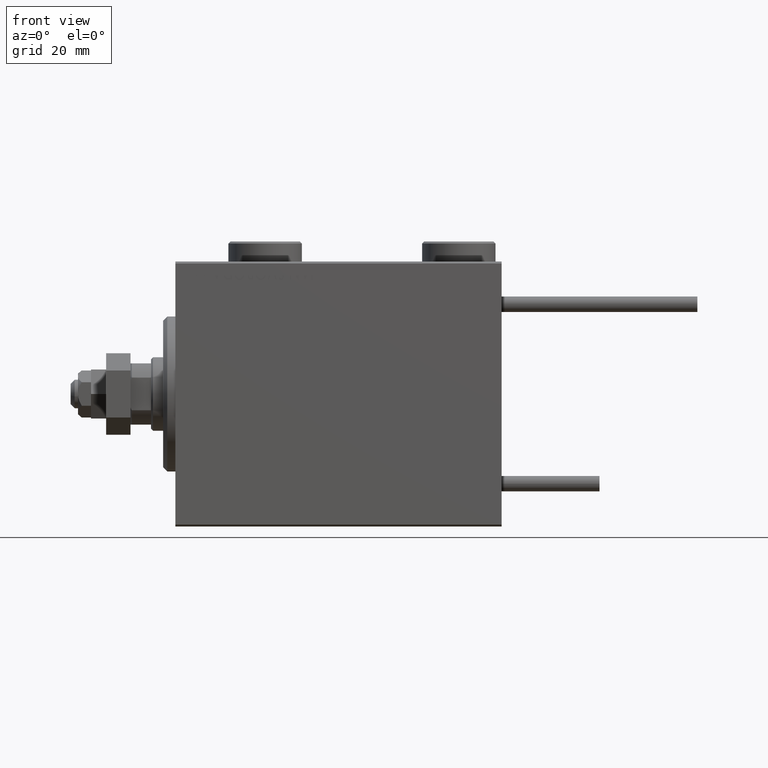
[diagram: clean part render]
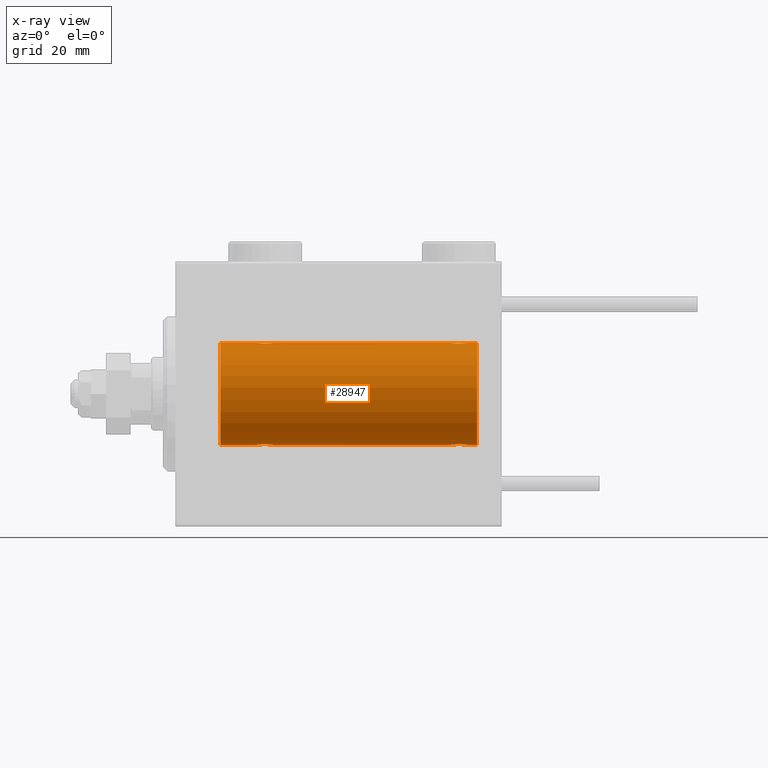
[diagram: x-ray — body ghosted, one internal face saturated and labeled with its STEP entity id]
A machine part, front view, then the same camera in x-ray: the body is ghosted and one INTERNAL B-rep face — a face not visible from any outside direction — is saturated and labeled: STEP entity #28947.
In plain terms, the highlighted cylindrical surface (partial cylindrical patch) has radius 12.5 mm, axis along (-1, -0, -0).
Its self-contained STEP definition (entity closure, byte-faithful):
#430 = CARTESIAN_POINT ( 'NONE',  ( 10.99999999999999645, 1.530808498934191521E-15, -12.50000000000000000 ) ) ;
#447 = CYLINDRICAL_SURFACE ( 'NONE', #21290, 12.50000000000000000 ) ;
#471 = CARTESIAN_POINT ( 'NONE',  ( 74.00000000000000000, 0.000000000000000000, 12.50000000000000000 ) ) ;
#570 = EDGE_CURVE ( 'NONE', #34065, #29341, #9362, .T. ) ;
#928 = CARTESIAN_POINT ( 'NONE',  ( 23.79785606468258052, -0.8858253204748003373, -12.46915613403960954 ) ) ;
#1180 = CARTESIAN_POINT ( 'NONE',  ( 71.50000000000004263, -0.2612140938986735050, -12.50000000000000355 ) ) ;
#1196 = CARTESIAN_POINT ( 'NONE',  ( 20.67883287148555382, -1.507135374967699670, -12.40915432986587064 ) ) ;
#1534 = CARTESIAN_POINT ( 'NONE',  ( 74.00000000000000000, 0.000000000000000000, 12.50000000000000000 ) ) ;
#1701 = CARTESIAN_POINT ( 'NONE',  ( 24.00000000000000711, -0.2612140938986747818, -12.50000000000000533 ) ) ;
#1872 = CARTESIAN_POINT ( 'NONE',  ( 68.17700056892269345, -1.505544071529930639, 12.40934942683854025 ) ) ;
#1986 = VECTOR ( 'NONE', #26724, 1000.000000000000000 ) ;
#2397 = CARTESIAN_POINT ( 'NONE',  ( 68.85356103036406239, -1.897190184049181161, 12.35529285772521213 ) ) ;
#3124 = CARTESIAN_POINT ( 'NONE',  ( 21.86659749548704212, -1.999916920503820306, 12.33897614545467647 ) ) ;
#3374 = CARTESIAN_POINT ( 'NONE',  ( 19.99999999999999645, -7.265724481447607133E-23, 12.50000000000000000 ) ) ;
#4489 = CARTESIAN_POINT ( 'NONE',  ( 71.50000000000001421, 1.530808426270318106E-15, -12.50000000000000000 ) ) ;
#4615 = CARTESIAN_POINT ( 'NONE',  ( 71.23563078019577688, -1.002396200863558073, -12.46022444231050663 ) ) ;
#4725 = VERTEX_POINT ( 'NONE', #39005 ) ;
#5161 = CARTESIAN_POINT ( 'NONE',  ( 20.78145880458060901, -1.591305132013878021, -12.39851226212236313 ) ) ;
#5416 = CARTESIAN_POINT ( 'NONE',  ( 67.90255225308976605, -1.231226695485375888, -12.44059298055988094 ) ) ;
#5648 = VERTEX_POINT ( 'NONE', #29958 ) ;
#5688 = CARTESIAN_POINT ( 'NONE',  ( 21.86910032676576421, -2.000082296475566679, -12.33894933996983490 ) ) ;
#5825 = ORIENTED_EDGE ( 'NONE', *, *, #44627, .F. ) ;
#6380 = CARTESIAN_POINT ( 'NONE',  ( 70.01693726697627085, -1.936441098420705220, 12.34912369794528786 ) ) ;
#6570 = CARTESIAN_POINT ( 'NONE',  ( 23.74662136620892383, -1.008535157355842538, 12.46157701909767646 ) ) ;
#6680 = DIRECTION ( 'NONE',  ( -1.000000000000000000, 0.000000000000000000, 0.000000000000000000 ) ) ;
#6872 = VECTOR ( 'NONE', #36107, 1000.000000000000000 ) ;
#7108 = CARTESIAN_POINT ( 'NONE',  ( 21.73608626897565799, -1.986793270638199438, 12.34112317291865502 ) ) ;
#7532 = EDGE_CURVE ( 'NONE', #24075, #30968, #41908, .T. ) ;
#7603 = CARTESIAN_POINT ( 'NONE',  ( 23.59744774691023039, -1.231226695485369893, 12.44059298055988272 ) ) ;
#7785 = ORIENTED_EDGE ( 'NONE', *, *, #570, .T. ) ;
#8597 = CARTESIAN_POINT ( 'NONE',  ( 67.75337863379105841, -1.008535157355851197, -12.46157701909767823 ) ) ;
#9120 = CARTESIAN_POINT ( 'NONE',  ( 71.08981090228292032, -1.220538259806345893, -12.44075068685996932 ) ) ;
#9362 = B_SPLINE_CURVE_WITH_KNOTS ( 'NONE', 3,
 ( #41860, #1701, #37344, #928, #16861, #29885, #49293, #37615, #17919, #46362, #45566, #33871, #45833, #33079, #13672, #5688, #20835, #50365, #34137, #41591, #42121, #5161, #1196, #42383, #13401, #12862, #17403, #46105 ),
 .UNSPECIFIED., .F., .F.,
 ( 4, 2, 2, 2, 2, 2, 2, 2, 2, 2, 2, 2, 2, 4 ),
 ( 0.006262980370572176700, 0.007045658964677373355, 0.007436998261729973851, 0.007828337558782575215, 0.008219676855835175711, 0.008611016152887776207, 0.009002355449940376703, 0.009393694746992977199, 0.009785034044045577695, 0.01017637334109817646, 0.01056771263815077869, 0.01095905193520337745, 0.01174173052930858711, 0.01252440912341379504 ),
 .UNSPECIFIED. ) ;
#9463 = FACE_OUTER_BOUND ( 'NONE', #22713, .T. ) ;
#9523 = CARTESIAN_POINT ( 'NONE',  ( 24.00000000000000000, 1.530808426277417854E-15, -12.50000000000000000 ) ) ;
#9717 = B_SPLINE_CURVE_WITH_KNOTS ( 'NONE', 3,
 ( #34036, #38030, #42017, #10103, #22067, #38301, #18352, #1872, #41757, #34561, #14094, #2397, #26329, #50788, #14356, #26602, #42817, #6380, #22603, #38834, #18612, #47563, #22865, #43073, #52338, #51324, #23131, #35349 ),
 .UNSPECIFIED., .F., .F.,
 ( 4, 2, 2, 2, 2, 2, 2, 2, 2, 2, 2, 2, 2, 4 ),
 ( 0.006262980370572151546, 0.007045658964677331722, 0.007436998261729929616, 0.007828337558782528377, 0.008219676855835125404, 0.008611016152887724165, 0.009002355449940321191, 0.009393694746992919953, 0.009785034044045518714, 0.01017637334109811748, 0.01056771263815071624, 0.01095905193520331326, 0.01174173052930854028, 0.01252440912341376555 ),
 .UNSPECIFIED. ) ;
#9915 = CARTESIAN_POINT ( 'NONE',  ( 74.00000000000000000, 0.000000000000000000, 12.50000000000000000 ) ) ;
#9964 = VERTEX_POINT ( 'NONE', #4489 ) ;
#10103 = CARTESIAN_POINT ( 'NONE',  ( 67.70214393531738040, -0.8858253204748003373, 12.46915613403960421 ) ) ;
#10826 = CARTESIAN_POINT ( 'NONE',  ( 20.05255659427670167, -0.5247436444070346928, 12.49130933415156619 ) ) ;
#11352 = CARTESIAN_POINT ( 'NONE',  ( 23.21854119541938033, -1.591305132013879131, 12.39851226212235957 ) ) ;
#11603 = CARTESIAN_POINT ( 'NONE',  ( 22.26093497285607370, -1.987194304939079448, 12.34105826212746138 ) ) ;
#11838 = AXIS2_PLACEMENT_3D ( 'NONE', #29550, #6680, #22382 ) ;
#11905 = VECTOR ( 'NONE', #50607, 1000.000000000000000 ) ;
#12094 = DIRECTION ( 'NONE',  ( -1.000000000000000000, -0.000000000000000000, -0.000000000000000000 ) ) ;
#12480 = DIRECTION ( 'NONE',  ( -1.000000000000000000, 0.000000000000000000, 0.000000000000000000 ) ) ;
#12737 = DIRECTION ( 'NONE',  ( 0.000000000000000000, 0.000000000000000000, 1.000000000000000000 ) ) ;
#12862 = CARTESIAN_POINT ( 'NONE',  ( 20.05334320101619738, -0.5275951738695662252, -12.49118442338578561 ) ) ;
#13401 = CARTESIAN_POINT ( 'NONE',  ( 20.25337863379106551, -1.008535157355840761, -12.46157701909767646 ) ) ;
#13660 = DIRECTION ( 'NONE',  ( -1.000000000000000000, -0.000000000000000000, -0.000000000000000000 ) ) ;
#13672 = CARTESIAN_POINT ( 'NONE',  ( 22.13340250451295077, -1.999916920503817197, -12.33897614545467469 ) ) ;
#14094 = CARTESIAN_POINT ( 'NONE',  ( 68.61125274202963453, -1.796480516834681573, 12.37033750336835958 ) ) ;
#14356 = CARTESIAN_POINT ( 'NONE',  ( 69.36659749548704212, -1.999916920503812534, 12.33897614545467647 ) ) ;
#14545 = ORIENTED_EDGE ( 'NONE', *, *, #48212, .T. ) ;
#15080 = CARTESIAN_POINT ( 'NONE',  ( 20.99654425923307954, -1.734959850168413587, 12.37922718965051061 ) ) ;
#15648 = LINE ( 'NONE', #48069, #6872 ) ;
#15852 = CARTESIAN_POINT ( 'NONE',  ( 20.49277848532005919, -1.321088093821079834, 12.43033959299025071 ) ) ;
#16845 = CARTESIAN_POINT ( 'NONE',  ( 70.50345574076690980, -1.734959850168409146, -12.37922718965050528 ) ) ;
#16861 = CARTESIAN_POINT ( 'NONE',  ( 23.73563078019576977, -1.002396200863559184, -12.46022444231050663 ) ) ;
#17403 = CARTESIAN_POINT ( 'NONE',  ( 20.00000000000000000, -0.2646816682749822958, -12.50000000000000000 ) ) ;
#17919 = CARTESIAN_POINT ( 'NONE',  ( 23.22027149897420628, -1.589951752150275732, -12.39868561261689273 ) ) ;
#18352 = CARTESIAN_POINT ( 'NONE',  ( 67.99277848532008761, -1.321088093821075393, 12.43033959299025426 ) ) ;
#18612 = CARTESIAN_POINT ( 'NONE',  ( 70.50099792098508544, -1.736403706023266658, 12.37902502246767789 ) ) ;
#18812 = CARTESIAN_POINT ( 'NONE',  ( 20.20214393531741237, -0.8858253204748024467, 12.46915613403961309 ) ) ;
#19323 = CARTESIAN_POINT ( 'NONE',  ( 22.51693726697628151, -1.936441098420708773, 12.34912369794528608 ) ) ;
#19576 = CARTESIAN_POINT ( 'NONE',  ( 23.32116712851443907, -1.507135374967700558, 12.40915432986587064 ) ) ;
#20182 = ORIENTED_EDGE ( 'NONE', *, *, #24701, .F. ) ;
#20817 = CARTESIAN_POINT ( 'NONE',  ( 67.50000000000000000, -8.176262823880599614E-15, -12.50000000000000000 ) ) ;
#20835 = CARTESIAN_POINT ( 'NONE',  ( 21.73906502714393341, -1.987194304939077671, -12.34105826212746138 ) ) ;
#21084 = CARTESIAN_POINT ( 'NONE',  ( 70.01961472357872651, -1.935716533151645269, -12.34923763528284901 ) ) ;
#21290 = AXIS2_PLACEMENT_3D ( 'NONE', #24900, #33673, #40849 ) ;
#21736 = LINE ( 'NONE', #1534, #1986 ) ;
#21888 = CARTESIAN_POINT ( 'NONE',  ( 70.72027149897421339, -1.589951752150273512, -12.39868561261689095 ) ) ;
#22067 = CARTESIAN_POINT ( 'NONE',  ( 67.76436921980425154, -1.002396200863564291, 12.46022444231050663 ) ) ;
#22382 = DIRECTION ( 'NONE',  ( 0.000000000000000000, 0.000000000000000000, 1.000000000000000000 ) ) ;
#22603 = CARTESIAN_POINT ( 'NONE',  ( 70.14425278797729391, -1.897913903092038890, 12.35518060345724933 ) ) ;
#22713 = EDGE_LOOP ( 'NONE', ( #24875, #46985, #14545, #52407, #7785, #40557, #45222, #42557, #31855, #5825, #33225, #20182 ) ) ;
#22798 = CARTESIAN_POINT ( 'NONE',  ( 24.00000000000000000, -4.527848004210791175E-16, 12.50000000000000000 ) ) ;
#22865 = CARTESIAN_POINT ( 'NONE',  ( 70.82116712851446039, -1.507135374967687458, 12.40915432986586886 ) ) ;
#23131 = CARTESIAN_POINT ( 'NONE',  ( 71.50000000000002842, -0.2646816682749792982, 12.50000000000000178 ) ) ;
#23225 = EDGE_CURVE ( 'NONE', #47476, #4725, #25442, .T. ) ;
#24075 = VERTEX_POINT ( 'NONE', #430 ) ;
#24649 = B_SPLINE_CURVE_WITH_KNOTS ( 'NONE', 3,
 ( #25084, #1180, #28804, #25893, #4615, #9120, #24825, #42106, #21888, #16845, #37858, #25351, #21084, #38117, #49819, #45816, #33856, #45285, #41574, #41845, #45012, #49553, #33598, #5416, #8597, #37600, #50080, #20817 ),
 .UNSPECIFIED., .F., .F.,
 ( 4, 2, 2, 2, 2, 2, 2, 2, 2, 2, 2, 2, 2, 4 ),
 ( 0.006262980370572168026, 0.007045658964677356875, 0.007436998261729959106, 0.007828337558782561337, 0.008219676855835163568, 0.008611016152887765798, 0.009002355449940368029, 0.009393694746992970260, 0.009785034044045572491, 0.01017637334109817472, 0.01056771263815077869, 0.01095905193520338092, 0.01174173052930858538, 0.01252440912341379158 ),
 .UNSPECIFIED. ) ;
#24701 = EDGE_CURVE ( 'NONE', #4725, #36428, #46338, .T. ) ;
#24825 = CARTESIAN_POINT ( 'NONE',  ( 71.00722151467995502, -1.321088093821075393, -12.43033959299025426 ) ) ;
#24875 = ORIENTED_EDGE ( 'NONE', *, *, #23225, .F. ) ;
#24900 = CARTESIAN_POINT ( 'NONE',  ( 74.00000000000000000, 0.000000000000000000, 0.000000000000000000 ) ) ;
#25084 = CARTESIAN_POINT ( 'NONE',  ( 71.50000000000001421, 1.530808426270318106E-15, -12.50000000000000000 ) ) ;
#25351 = CARTESIAN_POINT ( 'NONE',  ( 70.14643896963590919, -1.897190184049181827, -12.35529285772521568 ) ) ;
#25442 = CIRCLE ( 'NONE', #11838, 12.50000000000000000 ) ;
#25823 = CARTESIAN_POINT ( 'NONE',  ( 67.50000000000000000, -8.176262823880599614E-15, -12.50000000000000000 ) ) ;
#25893 = CARTESIAN_POINT ( 'NONE',  ( 71.29785606468259118, -0.8858253204747997822, -12.46915613403960954 ) ) ;
#26129 = CARTESIAN_POINT ( 'NONE',  ( 10.99999999999999645, 0.000000000000000000, 12.50000000000000000 ) ) ;
#26329 = CARTESIAN_POINT ( 'NONE',  ( 68.98038527642127349, -1.935716533151639718, 12.34923763528284546 ) ) ;
#26602 = CARTESIAN_POINT ( 'NONE',  ( 69.63089967323422513, -2.000082296475560906, 12.33894933996983490 ) ) ;
#26724 = DIRECTION ( 'NONE',  ( -1.000000000000000000, -0.000000000000000000, -0.000000000000000000 ) ) ;
#27049 = CARTESIAN_POINT ( 'NONE',  ( 21.35356103036408371, -1.897190184049189599, 12.35529285772521391 ) ) ;
#27136 = EDGE_CURVE ( 'NONE', #5648, #42872, #50715, .T. ) ;
#27224 = CARTESIAN_POINT ( 'NONE',  ( 71.50000000000001421, 3.163483401492493339E-15, 12.50000000000000000 ) ) ;
#27317 = CARTESIAN_POINT ( 'NONE',  ( 20.41018909771710454, -1.220538259806349446, 12.44075068685996932 ) ) ;
#27577 = CARTESIAN_POINT ( 'NONE',  ( 23.94665679898380617, -0.5275951738695671134, 12.49118442338578561 ) ) ;
#27825 = CARTESIAN_POINT ( 'NONE',  ( 22.88616153879432602, -1.797736511708064144, 12.37015393445320299 ) ) ;
#28079 = CARTESIAN_POINT ( 'NONE',  ( 22.64425278797729391, -1.897913903092048438, 12.35518060345725111 ) ) ;
#28804 = CARTESIAN_POINT ( 'NONE',  ( 71.44744340572330543, -0.5247436444070332495, -12.49130933415156264 ) ) ;
#28947 = ADVANCED_FACE ( 'NONE', ( #9463 ), #447, .F. ) ;
#29200 = EDGE_CURVE ( 'NONE', #47739, #34065, #37863, .T. ) ;
#29341 = VERTEX_POINT ( 'NONE', #36825 ) ;
#29499 = CARTESIAN_POINT ( 'NONE',  ( 10.99999999999999645, 0.000000000000000000, 0.000000000000000000 ) ) ;
#29550 = CARTESIAN_POINT ( 'NONE',  ( 74.00000000000000000, 0.000000000000000000, 0.000000000000000000 ) ) ;
#29885 = CARTESIAN_POINT ( 'NONE',  ( 23.58981090228289546, -1.220538259806347225, -12.44075068685997287 ) ) ;
#29958 = CARTESIAN_POINT ( 'NONE',  ( 19.99999999999999645, -7.265724481447607133E-23, 12.50000000000000000 ) ) ;
#30348 = EDGE_CURVE ( 'NONE', #29341, #24075, #44530, .T. ) ;
#30968 = VERTEX_POINT ( 'NONE', #26129 ) ;
#31032 = CARTESIAN_POINT ( 'NONE',  ( 22.13089967323422869, -2.000082296475568011, 12.33894933996983134 ) ) ;
#31089 = CARTESIAN_POINT ( 'NONE',  ( 74.00000000000000000, 1.530808498934191521E-15, -12.50000000000000000 ) ) ;
#31365 = EDGE_CURVE ( 'NONE', #45442, #36428, #9717, .T. ) ;
#31547 = VECTOR ( 'NONE', #12094, 1000.000000000000000 ) ;
#31855 = ORIENTED_EDGE ( 'NONE', *, *, #27136, .T. ) ;
#33079 = CARTESIAN_POINT ( 'NONE',  ( 22.26391373102435622, -1.986793270638196551, -12.34112317291864791 ) ) ;
#33225 = ORIENTED_EDGE ( 'NONE', *, *, #31365, .T. ) ;
#33598 = CARTESIAN_POINT ( 'NONE',  ( 68.17883287148555382, -1.507135374967704999, -12.40915432986586531 ) ) ;
#33673 = DIRECTION ( 'NONE',  ( -1.000000000000000000, -0.000000000000000000, -0.000000000000000000 ) ) ;
#33856 = CARTESIAN_POINT ( 'NONE',  ( 69.23906502714393696, -1.987194304939079004, -12.34105826212746138 ) ) ;
#33871 = CARTESIAN_POINT ( 'NONE',  ( 22.64643896963591985, -1.897190184049187378, -12.35529285772521924 ) ) ;
#34036 = CARTESIAN_POINT ( 'NONE',  ( 67.50000000000000000, -7.266434456262306043E-23, 12.50000000000000000 ) ) ;
#34065 = VERTEX_POINT ( 'NONE', #9523 ) ;
#34137 = CARTESIAN_POINT ( 'NONE',  ( 21.35574721202270254, -1.897913903092047327, -12.35518060345725289 ) ) ;
#34561 = CARTESIAN_POINT ( 'NONE',  ( 68.49654425923313283, -1.734959850168412254, 12.37922718965051061 ) ) ;
#35349 = CARTESIAN_POINT ( 'NONE',  ( 71.50000000000001421, 3.163483401492493339E-15, 12.50000000000000000 ) ) ;
#36107 = DIRECTION ( 'NONE',  ( -1.000000000000000000, -0.000000000000000000, -0.000000000000000000 ) ) ;
#36428 = VERTEX_POINT ( 'NONE', #27224 ) ;
#36618 = DIRECTION ( 'NONE',  ( -1.000000000000000000, -0.000000000000000000, -0.000000000000000000 ) ) ;
#36825 = CARTESIAN_POINT ( 'NONE',  ( 19.99999999999999645, -3.213890523917628161E-15, -12.50000000000000000 ) ) ;
#37344 = CARTESIAN_POINT ( 'NONE',  ( 23.94744340572329833, -0.5247436444070328054, -12.49130933415156619 ) ) ;
#37600 = CARTESIAN_POINT ( 'NONE',  ( 67.55334320101620449, -0.5275951738695788817, -12.49118442338578383 ) ) ;
#37615 = CARTESIAN_POINT ( 'NONE',  ( 23.32299943107732432, -1.505544071529935080, -12.40934942683853848 ) ) ;
#37858 = CARTESIAN_POINT ( 'NONE',  ( 70.38874725797043652, -1.796480516834679797, -12.37033750336835425 ) ) ;
#37863 = LINE ( 'NONE', #42110, #46802 ) ;
#38030 = CARTESIAN_POINT ( 'NONE',  ( 67.49999999999998579, -0.2612140938986747818, 12.50000000000000000 ) ) ;
#38117 = CARTESIAN_POINT ( 'NONE',  ( 69.76391373102434557, -1.986793270638198994, -12.34112317291865146 ) ) ;
#38301 = CARTESIAN_POINT ( 'NONE',  ( 67.91018909771712231, -1.220538259806350778, 12.44075068685996754 ) ) ;
#38834 = CARTESIAN_POINT ( 'NONE',  ( 70.38616153879435444, -1.797736511708053264, 12.37015393445321010 ) ) ;
#38943 = CARTESIAN_POINT ( 'NONE',  ( 24.00000000000000000, -4.527848004210791175E-16, 12.50000000000000000 ) ) ;
#39005 = CARTESIAN_POINT ( 'NONE',  ( 74.00000000000000000, 0.000000000000000000, 12.50000000000000000 ) ) ;
#40557 = ORIENTED_EDGE ( 'NONE', *, *, #30348, .T. ) ;
#40849 = DIRECTION ( 'NONE',  ( 0.000000000000000000, 0.000000000000000000, 1.000000000000000000 ) ) ;
#41574 = CARTESIAN_POINT ( 'NONE',  ( 68.85574721202270609, -1.897913903092048660, -12.35518060345724933 ) ) ;
#41591 = CARTESIAN_POINT ( 'NONE',  ( 21.11383846120566332, -1.797736511708062368, -12.37015393445320122 ) ) ;
#41757 = CARTESIAN_POINT ( 'NONE',  ( 68.27972850102582925, -1.589951752150278397, 12.39868561261688740 ) ) ;
#41845 = CARTESIAN_POINT ( 'NONE',  ( 68.61383846120567398, -1.797736511708065033, -12.37015393445320832 ) ) ;
#41860 = CARTESIAN_POINT ( 'NONE',  ( 24.00000000000000000, 1.530808426277417854E-15, -12.50000000000000000 ) ) ;
#41908 = CIRCLE ( 'NONE', #42749, 12.50000000000000000 ) ;
#42017 = CARTESIAN_POINT ( 'NONE',  ( 67.55255659427669457, -0.5247436444070334716, 12.49130933415156441 ) ) ;
#42106 = CARTESIAN_POINT ( 'NONE',  ( 70.82299943107736340, -1.505544071529932193, -12.40934942683853848 ) ) ;
#42110 = CARTESIAN_POINT ( 'NONE',  ( 74.00000000000000000, 1.530808498934191521E-15, -12.50000000000000000 ) ) ;
#42121 = CARTESIAN_POINT ( 'NONE',  ( 20.99900207901491811, -1.736403706023270654, -12.37902502246767966 ) ) ;
#42383 = CARTESIAN_POINT ( 'NONE',  ( 20.40255225308977671, -1.231226695485369893, -12.44059298055988627 ) ) ;
#42557 = ORIENTED_EDGE ( 'NONE', *, *, #51128, .F. ) ;
#42749 = AXIS2_PLACEMENT_3D ( 'NONE', #29499, #12480, #12737 ) ;
#42817 = CARTESIAN_POINT ( 'NONE',  ( 69.76093497285606304, -1.987194304939074341, 12.34105826212746138 ) ) ;
#42872 = VERTEX_POINT ( 'NONE', #38943 ) ;
#43073 = CARTESIAN_POINT ( 'NONE',  ( 71.09744774691024816, -1.231226695485355904, 12.44059298055988450 ) ) ;
#43527 = CARTESIAN_POINT ( 'NONE',  ( 21.11125274202960256, -1.796480516834690233, 12.37033750336835958 ) ) ;
#43784 = CARTESIAN_POINT ( 'NONE',  ( 24.00000000000000000, -0.2646816682749787430, 12.50000000000000178 ) ) ;
#44530 = LINE ( 'NONE', #31089, #31547 ) ;
#44627 = EDGE_CURVE ( 'NONE', #45442, #42872, #48580, .T. ) ;
#45012 = CARTESIAN_POINT ( 'NONE',  ( 68.49900207901491456, -1.736403706023271099, -12.37902502246767611 ) ) ;
#45222 = ORIENTED_EDGE ( 'NONE', *, *, #7532, .T. ) ;
#45285 = CARTESIAN_POINT ( 'NONE',  ( 68.98306273302372915, -1.936441098420709883, -12.34912369794528786 ) ) ;
#45307 = EDGE_CURVE ( 'NONE', #47476, #9964, #15648, .T. ) ;
#45442 = VERTEX_POINT ( 'NONE', #49379 ) ;
#45566 = CARTESIAN_POINT ( 'NONE',  ( 22.88874725797039389, -1.796480516834687347, -12.37033750336835247 ) ) ;
#45816 = CARTESIAN_POINT ( 'NONE',  ( 69.36910032676581750, -2.000082296475568011, -12.33894933996983667 ) ) ;
#45833 = CARTESIAN_POINT ( 'NONE',  ( 22.51961472357873717, -1.935716533151642826, -12.34923763528285257 ) ) ;
#46105 = CARTESIAN_POINT ( 'NONE',  ( 19.99999999999999645, -3.213890523917628161E-15, -12.50000000000000000 ) ) ;
#46338 = LINE ( 'NONE', #9915, #11905 ) ;
#46362 = CARTESIAN_POINT ( 'NONE',  ( 23.00345574076691335, -1.734959850168410256, -12.37922718965050528 ) ) ;
#46597 = CARTESIAN_POINT ( 'NONE',  ( 74.00000000000000000, 1.530808498934191521E-15, -12.50000000000000000 ) ) ;
#46802 = VECTOR ( 'NONE', #13660, 1000.000000000000000 ) ;
#46985 = ORIENTED_EDGE ( 'NONE', *, *, #45307, .T. ) ;
#47248 = CARTESIAN_POINT ( 'NONE',  ( 23.00099792098508189, -1.736403706023272431, 12.37902502246767966 ) ) ;
#47476 = VERTEX_POINT ( 'NONE', #46597 ) ;
#47563 = CARTESIAN_POINT ( 'NONE',  ( 70.71854119541936257, -1.591305132013873358, 12.39851226212235957 ) ) ;
#47739 = VERTEX_POINT ( 'NONE', #25823 ) ;
#47762 = CARTESIAN_POINT ( 'NONE',  ( 20.67700056892266502, -1.505544071529935968, 12.40934942683853670 ) ) ;
#48022 = CARTESIAN_POINT ( 'NONE',  ( 20.77972850102578661, -1.589951752150277287, 12.39868561261688917 ) ) ;
#48069 = CARTESIAN_POINT ( 'NONE',  ( 74.00000000000000000, 1.530808498934191521E-15, -12.50000000000000000 ) ) ;
#48212 = EDGE_CURVE ( 'NONE', #9964, #47739, #24649, .T. ) ;
#48268 = CARTESIAN_POINT ( 'NONE',  ( 19.99999999999999289, -0.2612140938986765581, 12.50000000000000000 ) ) ;
#48580 = LINE ( 'NONE', #471, #50989 ) ;
#49293 = CARTESIAN_POINT ( 'NONE',  ( 23.50722151467992660, -1.321088093821078502, -12.43033959299025248 ) ) ;
#49379 = CARTESIAN_POINT ( 'NONE',  ( 67.50000000000000000, -7.266434456262306043E-23, 12.50000000000000000 ) ) ;
#49553 = CARTESIAN_POINT ( 'NONE',  ( 68.28145880458060901, -1.591305132013878909, -12.39851226212235957 ) ) ;
#49819 = CARTESIAN_POINT ( 'NONE',  ( 69.63340250451298630, -1.999916920503816531, -12.33897614545467647 ) ) ;
#50080 = CARTESIAN_POINT ( 'NONE',  ( 67.49999999999997158, -0.2646816682749892902, -12.49999999999999289 ) ) ;
#50365 = CARTESIAN_POINT ( 'NONE',  ( 21.48306273302371494, -1.936441098420706997, -12.34912369794528431 ) ) ;
#50607 = DIRECTION ( 'NONE',  ( -1.000000000000000000, -0.000000000000000000, -0.000000000000000000 ) ) ;
#50715 = B_SPLINE_CURVE_WITH_KNOTS ( 'NONE', 3,
 ( #3374, #48268, #10826, #18812, #51520, #27317, #15852, #47762, #48022, #15080, #43527, #27049, #51265, #7108, #3124, #31032, #11603, #19323, #28079, #27825, #47248, #11352, #19576, #7603, #6570, #27577, #43784, #22798 ),
 .UNSPECIFIED., .F., .F.,
 ( 4, 2, 2, 2, 2, 2, 2, 2, 2, 2, 2, 2, 2, 4 ),
 ( 0.006262980370572172363, 0.007045658964677369886, 0.007436998261729971249, 0.007828337558782571745, 0.008219676855835172241, 0.008611016152887774472, 0.009002355449940373233, 0.009393694746992975464, 0.009785034044045575960, 0.01017637334109817646, 0.01056771263815077869, 0.01095905193520337918, 0.01174173052930858538, 0.01252440912341379504 ),
 .UNSPECIFIED. ) ;
#50788 = CARTESIAN_POINT ( 'NONE',  ( 69.23608626897566864, -1.986793270638193443, 12.34112317291865146 ) ) ;
#50989 = VECTOR ( 'NONE', #36618, 1000.000000000000000 ) ;
#51128 = EDGE_CURVE ( 'NONE', #5648, #30968, #21736, .T. ) ;
#51265 = CARTESIAN_POINT ( 'NONE',  ( 21.48038527642126283, -1.935716533151644825, 12.34923763528284724 ) ) ;
#51324 = CARTESIAN_POINT ( 'NONE',  ( 71.44665679898382393, -0.5275951738695600080, 12.49118442338578561 ) ) ;
#51520 = CARTESIAN_POINT ( 'NONE',  ( 20.26436921980423023, -1.002396200863561404, 12.46022444231050841 ) ) ;
#52338 = CARTESIAN_POINT ( 'NONE',  ( 71.24662136620895581, -1.008535157355832768, 12.46157701909768178 ) ) ;
#52407 = ORIENTED_EDGE ( 'NONE', *, *, #29200, .T. ) ;